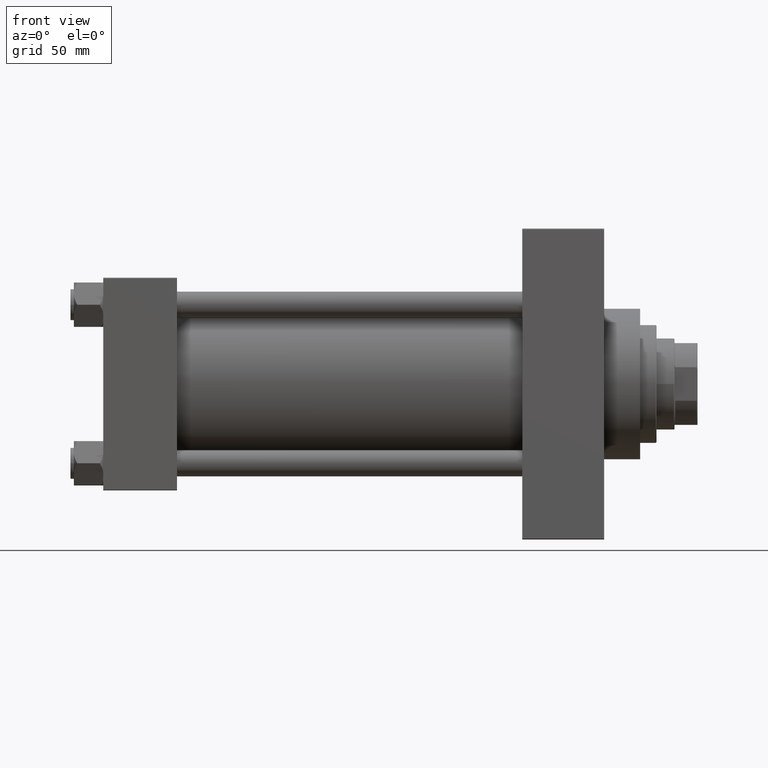
[diagram: clean part render]
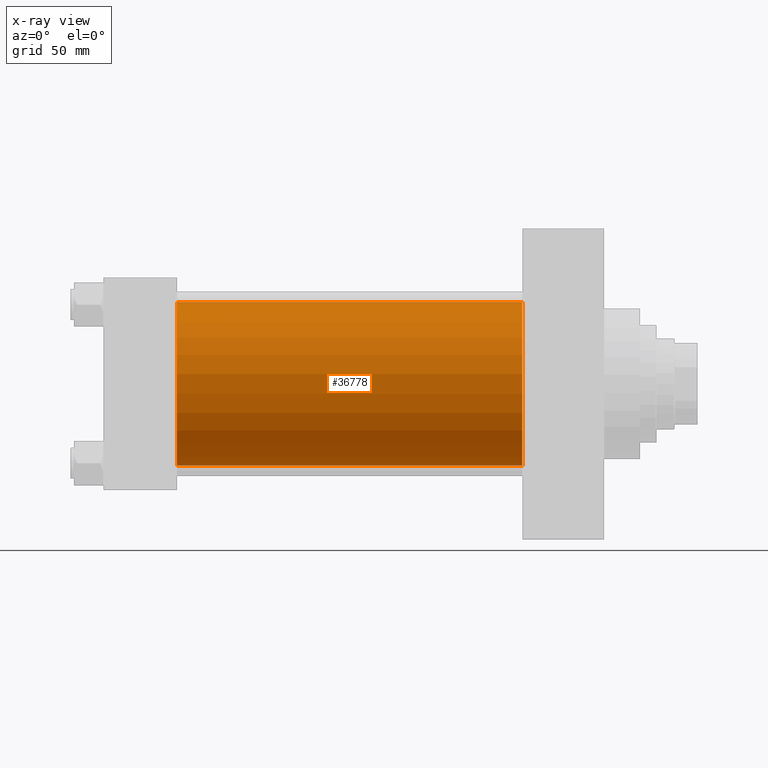
[diagram: x-ray — body ghosted, one internal face saturated and labeled with its STEP entity id]
A machine part, front view, then the same camera in x-ray: the body is ghosted and one INTERNAL B-rep face — a face not visible from any outside direction — is saturated and labeled: STEP entity #36778.
In plain terms, the highlighted cylindrical surface (partial cylindrical patch) has radius 50 mm, axis along (-1, -0, -0).
Its self-contained STEP definition (entity closure, byte-faithful):
#117 = CARTESIAN_POINT ( 'NONE',  ( 45.00000000000000000, -2.602085213965210642E-15, 50.00000000000000000 ) ) ;
#924 = AXIS2_PLACEMENT_3D ( 'NONE', #20776, #17160, #46612 ) ;
#1311 = DIRECTION ( 'NONE',  ( 1.000000000000000000, 0.000000000000000000, 0.000000000000000000 ) ) ;
#3135 = CARTESIAN_POINT ( 'NONE',  ( 256.0000000000000000, 3.521148781771555838E-15, -50.00000000000000000 ) ) ;
#6061 = CARTESIAN_POINT ( 'NONE',  ( 256.0000000000000000, -2.602085213965210642E-15, 50.00000000000000000 ) ) ;
#7936 = VECTOR ( 'NONE', #17166, 1000.000000000000000 ) ;
#9284 = VERTEX_POINT ( 'NONE', #117 ) ;
#9451 = LINE ( 'NONE', #6061, #7936 ) ;
#13061 = FACE_OUTER_BOUND ( 'NONE', #45306, .T. ) ;
#16266 = EDGE_CURVE ( 'NONE', #28419, #43891, #17482, .T. ) ;
#17160 = DIRECTION ( 'NONE',  ( -1.000000000000000000, -0.000000000000000000, -0.000000000000000000 ) ) ;
#17166 = DIRECTION ( 'NONE',  ( -1.000000000000000000, -0.000000000000000000, -0.000000000000000000 ) ) ;
#17403 = CYLINDRICAL_SURFACE ( 'NONE', #924, 50.00000000000000000 ) ;
#17482 = LINE ( 'NONE', #46447, #18565 ) ;
#18565 = VECTOR ( 'NONE', #36073, 1000.000000000000000 ) ;
#19350 = AXIS2_PLACEMENT_3D ( 'NONE', #20800, #46865, #35546 ) ;
#20776 = CARTESIAN_POINT ( 'NONE',  ( 256.0000000000000000, -2.602085213965210642E-15, 0.000000000000000000 ) ) ;
#20800 = CARTESIAN_POINT ( 'NONE',  ( 256.0000000000000000, -2.602085213965210642E-15, 0.000000000000000000 ) ) ;
#21825 = AXIS2_PLACEMENT_3D ( 'NONE', #38267, #1311, #23062 ) ;
#22426 = ORIENTED_EDGE ( 'NONE', *, *, #24640, .F. ) ;
#23062 = DIRECTION ( 'NONE',  ( 0.000000000000000000, 0.000000000000000000, -1.000000000000000000 ) ) ;
#24603 = ORIENTED_EDGE ( 'NONE', *, *, #16266, .T. ) ;
#24638 = CARTESIAN_POINT ( 'NONE',  ( 45.00000000000000000, 3.521148781771555838E-15, -50.00000000000000000 ) ) ;
#24640 = EDGE_CURVE ( 'NONE', #9284, #43891, #28008, .T. ) ;
#26270 = CIRCLE ( 'NONE', #19350, 50.00000000000000000 ) ;
#27025 = VERTEX_POINT ( 'NONE', #42329 ) ;
#28008 = CIRCLE ( 'NONE', #21825, 50.00000000000000000 ) ;
#28419 = VERTEX_POINT ( 'NONE', #3135 ) ;
#30391 = EDGE_CURVE ( 'NONE', #27025, #28419, #26270, .T. ) ;
#35318 = ORIENTED_EDGE ( 'NONE', *, *, #30391, .T. ) ;
#35546 = DIRECTION ( 'NONE',  ( 0.000000000000000000, 0.000000000000000000, -1.000000000000000000 ) ) ;
#36073 = DIRECTION ( 'NONE',  ( -1.000000000000000000, -0.000000000000000000, -0.000000000000000000 ) ) ;
#36778 = ADVANCED_FACE ( 'NONE', ( #13061 ), #17403, .F. ) ;
#38267 = CARTESIAN_POINT ( 'NONE',  ( 45.00000000000000000, -2.602085213965210642E-15, 0.000000000000000000 ) ) ;
#39776 = EDGE_CURVE ( 'NONE', #27025, #9284, #9451, .T. ) ;
#42329 = CARTESIAN_POINT ( 'NONE',  ( 256.0000000000000000, -2.602085213965210642E-15, 50.00000000000000000 ) ) ;
#43891 = VERTEX_POINT ( 'NONE', #24638 ) ;
#45306 = EDGE_LOOP ( 'NONE', ( #35318, #24603, #22426, #46334 ) ) ;
#46334 = ORIENTED_EDGE ( 'NONE', *, *, #39776, .F. ) ;
#46447 = CARTESIAN_POINT ( 'NONE',  ( 256.0000000000000000, 3.521148781771555838E-15, -50.00000000000000000 ) ) ;
#46612 = DIRECTION ( 'NONE',  ( 0.000000000000000000, 0.000000000000000000, 1.000000000000000000 ) ) ;
#46865 = DIRECTION ( 'NONE',  ( 1.000000000000000000, 0.000000000000000000, 0.000000000000000000 ) ) ;